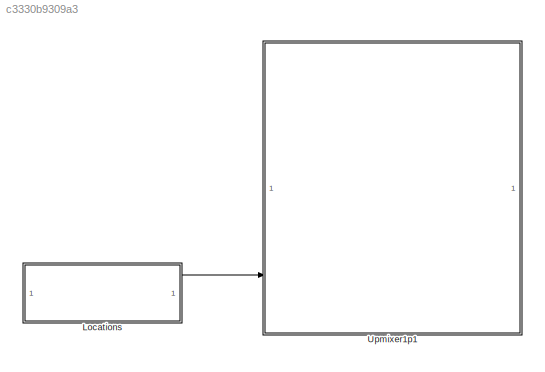
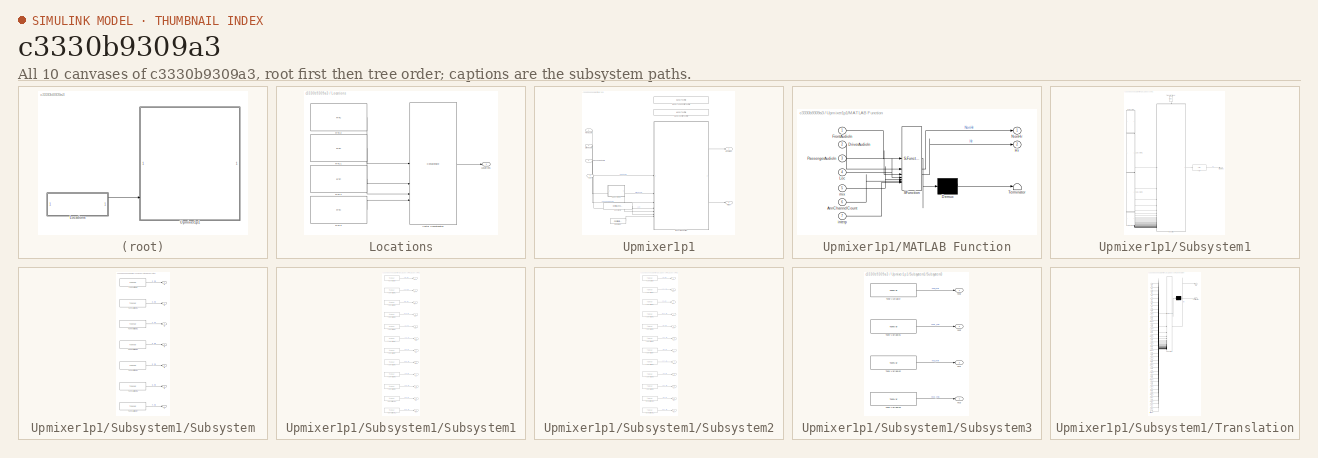
[diagram: thumbnail index - all 10 canvases of the model, root first then tree order]
MODEL slx_c3330b9309a3
KIND library
CONFIG AbsTol = auto
CONFIG EnableMultiTasking = off
CONFIG FixedStep = auto
CONFIG MaxStep = auto
CONFIG MinStep = auto
CONFIG RelTol = 1e-3
CONFIG SampleTimeConstraint = Unconstrained
CONFIG SolverName = VariableStepAuto
CONFIG StartTime = 0.0
CONFIG StopTime = 10.0
BLOCK [SubSystem] Locations
BLOCK [Outport] Locations/Locations
BLOCK [Reference] Locations/RTC1  REF=RTC/RTC
  SourceBlock = RTC/RTC
  SourceProductName = Bose Talaria
  SourceType = Talaria RTC Receive
BLOCK [Reference] Locations/RTC2  REF=RTC/RTC
  SourceBlock = RTC/RTC
  SourceProductName = Bose Talaria
  SourceType = Talaria RTC Receive
BLOCK [Reference] Locations/RTC3  REF=RTC/RTC
  SourceBlock = RTC/RTC
  SourceProductName = Bose Talaria
  SourceType = Talaria RTC Receive
BLOCK [Reference] Locations/RTC4  REF=RTC/RTC
  SourceBlock = RTC/RTC
  SourceProductName = Bose Talaria
  SourceType = Talaria RTC Receive
BLOCK [Concatenate] Locations/Vector Concatenate2
  ConcatenateDimension = 3
  Mode = Multidimensional array
  NumInputs = 4
BLOCK [SubSystem] Upmixer1p1
BLOCK [Constant] Upmixer1p1/Constant
  Value = Config.Interp
BLOCK [Constant] Upmixer1p1/Constant1
  Value = Config.AnnChannelCount
BLOCK [Inport] Upmixer1p1/DriverAudio
  Port = 2
BLOCK [Inport] Upmixer1p1/FrontAudio
BLOCK [Reference] Upmixer1p1/HandyConfigTextFile  REF=HandyTextFile/HandyTextFile
  SourceBlock = HandyTextFile/HandyTextFile
  SourceProductName = Bose Talaria
  SourceType = Talaria Handy Text File
BLOCK [Reference] Upmixer1p1/HandyTuneConfigTextFile  REF=HandyTextFile/HandyTextFile
  SourceBlock = HandyTextFile/HandyTextFile
  SourceProductName = Bose Talaria
  SourceType = Talaria Handy Text File
BLOCK [Outport] Upmixer1p1/HrOut
  Port = 2
  VectorParamsAs1DForOutWhenUnconnected = off
BLOCK [Inport] Upmixer1p1/Loc
  Port = 4
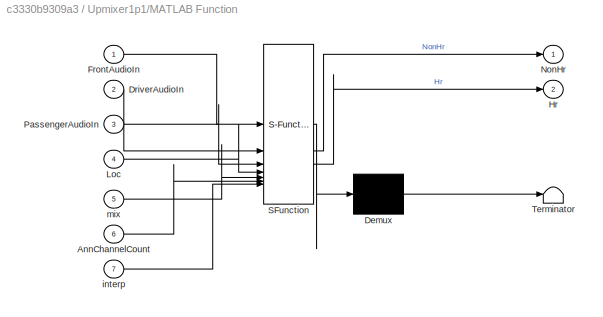
BLOCK [SubSystem] Upmixer1p1/MATLAB Function
  ErrorFcn = Stateflow.Translate.translate
  PermitHierarchicalResolution = ExplicitOnly
  SFBlockType = MATLAB Function
  TreatAsAtomicUnit = on
BLOCK [Demux] Upmixer1p1/MATLAB Function/ Demux 
  Outputs = 1
BLOCK [S-Function] Upmixer1p1/MATLAB Function/ SFunction 
  EnableBusSupport = off
  FunctionName = sf_sfun
  Parameters = ChannelsPerHeadrest,FrontPeripheralChannelCount,HeadrestCount
  PortCounts = [7 3]
  SFcnIsStateOwnerBlock = off
  SFunctionDeploymentMode = off
  Tag = Stateflow S-Function 2
BLOCK [Terminator] Upmixer1p1/MATLAB Function/ Terminator 
BLOCK [Inport] Upmixer1p1/MATLAB Function/AnnChannelCount
  Port = 6
BLOCK [Inport] Upmixer1p1/MATLAB Function/DriverAudioIn
  Port = 2
BLOCK [Inport] Upmixer1p1/MATLAB Function/FrontAudioIn
BLOCK [Outport] Upmixer1p1/MATLAB Function/Hr
  Port = 2
BLOCK [Inport] Upmixer1p1/MATLAB Function/Loc
  Port = 4
BLOCK [Outport] Upmixer1p1/MATLAB Function/NonHr
BLOCK [Inport] Upmixer1p1/MATLAB Function/PassengerAudioIn
  Port = 3
BLOCK [Inport] Upmixer1p1/MATLAB Function/interp
  Port = 7
BLOCK [Inport] Upmixer1p1/MATLAB Function/mix
  Port = 5
BLOCK [Outport] Upmixer1p1/NonHrOut
  VectorParamsAs1DForOutWhenUnconnected = off
BLOCK [Inport] Upmixer1p1/PassengerAudio
  Port = 3
BLOCK [SubSystem] Upmixer1p1/Subsystem1
BLOCK [Outport] Upmixer1p1/Subsystem1/MixGains
BLOCK [SubSystem] Upmixer1p1/Subsystem1/Subsystem
BLOCK [Reference] Upmixer1p1/Subsystem1/Subsystem/Tune Variable  REF=TuneVar/TuneVar
  SourceBlock = TuneVar/TuneVar
  SourceProductName = Bose Talaria
  SourceType = Talaria Tune Variable
BLOCK [Reference] Upmixer1p1/Subsystem1/Subsystem/Tune Variable1  REF=TuneVar/TuneVar
  SourceBlock = TuneVar/TuneVar
  SourceProductName = Bose Talaria
  SourceType = Talaria Tune Variable
BLOCK [Reference] Upmixer1p1/Subsystem1/Subsystem/Tune Variable2  REF=TuneVar/TuneVar
  SourceBlock = TuneVar/TuneVar
  SourceProductName = Bose Talaria
  SourceType = Talaria Tune Variable
BLOCK [Reference] Upmixer1p1/Subsystem1/Subsystem/Tune Variable3  REF=TuneVar/TuneVar
  SourceBlock = TuneVar/TuneVar
  SourceProductName = Bose Talaria
  SourceType = Talaria Tune Variable
BLOCK [Reference] Upmixer1p1/Subsystem1/Subsystem/Tune Variable4  REF=TuneVar/TuneVar
  SourceBlock = TuneVar/TuneVar
  SourceProductName = Bose Talaria
  SourceType = Talaria Tune Variable
BLOCK [Reference] Upmixer1p1/Subsystem1/Subsystem/Tune Variable5  REF=TuneVar/TuneVar
  SourceBlock = TuneVar/TuneVar
  SourceProductName = Bose Talaria
  SourceType = Talaria Tune Variable
BLOCK [Reference] Upmixer1p1/Subsystem1/Subsystem/Tune Variable7  REF=TuneVar/TuneVar
  SourceBlock = TuneVar/TuneVar
  SourceProductName = Bose Talaria
  SourceType = Talaria Tune Variable
BLOCK [Outport] Upmixer1p1/Subsystem1/Subsystem/f1
BLOCK [Outport] Upmixer1p1/Subsystem1/Subsystem/f2
  Port = 2
BLOCK [Outport] Upmixer1p1/Subsystem1/Subsystem/f3
  Port = 3
BLOCK [Outport] Upmixer1p1/Subsystem1/Subsystem/f4
  Port = 4
BLOCK [Outport] Upmixer1p1/Subsystem1/Subsystem/f5
  Port = 5
BLOCK [Outport] Upmixer1p1/Subsystem1/Subsystem/f6
  Port = 6
BLOCK [Outport] Upmixer1p1/Subsystem1/Subsystem/f7
  Port = 7
BLOCK [SubSystem] Upmixer1p1/Subsystem1/Subsystem1
BLOCK [Outport] Upmixer1p1/Subsystem1/Subsystem1/LCI
  Port = 9
BLOCK [Outport] Upmixer1p1/Subsystem1/Subsystem1/LCT
  Port = 10
BLOCK [Outport] Upmixer1p1/Subsystem1/Subsystem1/LFI
BLOCK [Outport] Upmixer1p1/Subsystem1/Subsystem1/LFT
  Port = 2
BLOCK [Outport] Upmixer1p1/Subsystem1/Subsystem1/LSI
  Port = 5
BLOCK [Outport] Upmixer1p1/Subsystem1/Subsystem1/LST
  Port = 6
BLOCK [Outport] Upmixer1p1/Subsystem1/Subsystem1/RCI
  Port = 11
BLOCK [Outport] Upmixer1p1/Subsystem1/Subsystem1/RCT
  Port = 12
BLOCK [Outport] Upmixer1p1/Subsystem1/Subsystem1/RFI
  Port = 3
BLOCK [Outport] Upmixer1p1/Subsystem1/Subsystem1/RFT
  Port = 4
BLOCK [Outport] Upmixer1p1/Subsystem1/Subsystem1/RSI
  Port = 7
BLOCK [Outport] Upmixer1p1/Subsystem1/Subsystem1/RST
  Port = 8
BLOCK [Reference] Upmixer1p1/Subsystem1/Subsystem1/Tune Variable  REF=TuneVar/TuneVar
  SourceBlock = TuneVar/TuneVar
  SourceProductName = Bose Talaria
  SourceType = Talaria Tune Variable
BLOCK [Reference] Upmixer1p1/Subsystem1/Subsystem1/Tune Variable1  REF=TuneVar/TuneVar
  SourceBlock = TuneVar/TuneVar
  SourceProductName = Bose Talaria
  SourceType = Talaria Tune Variable
BLOCK [Reference] Upmixer1p1/Subsystem1/Subsystem1/Tune Variable10  REF=TuneVar/TuneVar
  SourceBlock = TuneVar/TuneVar
  SourceProductName = Bose Talaria
  SourceType = Talaria Tune Variable
BLOCK [Reference] Upmixer1p1/Subsystem1/Subsystem1/Tune Variable11  REF=TuneVar/TuneVar
  SourceBlock = TuneVar/TuneVar
  SourceProductName = Bose Talaria
  SourceType = Talaria Tune Variable
BLOCK [Reference] Upmixer1p1/Subsystem1/Subsystem1/Tune Variable2  REF=TuneVar/TuneVar
  SourceBlock = TuneVar/TuneVar
  SourceProductName = Bose Talaria
  SourceType = Talaria Tune Variable
BLOCK [Reference] Upmixer1p1/Subsystem1/Subsystem1/Tune Variable3  REF=TuneVar/TuneVar
  SourceBlock = TuneVar/TuneVar
  SourceProductName = Bose Talaria
  SourceType = Talaria Tune Variable
BLOCK [Reference] Upmixer1p1/Subsystem1/Subsystem1/Tune Variable4  REF=TuneVar/TuneVar
  SourceBlock = TuneVar/TuneVar
  SourceProductName = Bose Talaria
  SourceType = Talaria Tune Variable
BLOCK [Reference] Upmixer1p1/Subsystem1/Subsystem1/Tune Variable5  REF=TuneVar/TuneVar
  SourceBlock = TuneVar/TuneVar
  SourceProductName = Bose Talaria
  SourceType = Talaria Tune Variable
BLOCK [Reference] Upmixer1p1/Subsystem1/Subsystem1/Tune Variable6  REF=TuneVar/TuneVar
  SourceBlock = TuneVar/TuneVar
  SourceProductName = Bose Talaria
  SourceType = Talaria Tune Variable
BLOCK [Reference] Upmixer1p1/Subsystem1/Subsystem1/Tune Variable7  REF=TuneVar/TuneVar
  SourceBlock = TuneVar/TuneVar
  SourceProductName = Bose Talaria
  SourceType = Talaria Tune Variable
BLOCK [Reference] Upmixer1p1/Subsystem1/Subsystem1/Tune Variable8  REF=TuneVar/TuneVar
  SourceBlock = TuneVar/TuneVar
  SourceProductName = Bose Talaria
  SourceType = Talaria Tune Variable
BLOCK [Reference] Upmixer1p1/Subsystem1/Subsystem1/Tune Variable9  REF=TuneVar/TuneVar
  SourceBlock = TuneVar/TuneVar
  SourceProductName = Bose Talaria
  SourceType = Talaria Tune Variable
BLOCK [SubSystem] Upmixer1p1/Subsystem1/Subsystem2
BLOCK [Outport] Upmixer1p1/Subsystem1/Subsystem2/LCI
  Port = 9
BLOCK [Outport] Upmixer1p1/Subsystem1/Subsystem2/LCT
  Port = 10
BLOCK [Outport] Upmixer1p1/Subsystem1/Subsystem2/LFI
BLOCK [Outport] Upmixer1p1/Subsystem1/Subsystem2/LFT
  Port = 2
BLOCK [Outport] Upmixer1p1/Subsystem1/Subsystem2/LSI
  Port = 5
BLOCK [Outport] Upmixer1p1/Subsystem1/Subsystem2/LST
  Port = 6
BLOCK [Outport] Upmixer1p1/Subsystem1/Subsystem2/RCI
  Port = 11
BLOCK [Outport] Upmixer1p1/Subsystem1/Subsystem2/RCT
  Port = 12
BLOCK [Outport] Upmixer1p1/Subsystem1/Subsystem2/RFI
  Port = 3
BLOCK [Outport] Upmixer1p1/Subsystem1/Subsystem2/RFT
  Port = 4
BLOCK [Outport] Upmixer1p1/Subsystem1/Subsystem2/RSI
  Port = 7
BLOCK [Outport] Upmixer1p1/Subsystem1/Subsystem2/RST
  Port = 8
BLOCK [Reference] Upmixer1p1/Subsystem1/Subsystem2/Tune Variable  REF=TuneVar/TuneVar
  SourceBlock = TuneVar/TuneVar
  SourceProductName = Bose Talaria
  SourceType = Talaria Tune Variable
BLOCK [Reference] Upmixer1p1/Subsystem1/Subsystem2/Tune Variable1  REF=TuneVar/TuneVar
  SourceBlock = TuneVar/TuneVar
  SourceProductName = Bose Talaria
  SourceType = Talaria Tune Variable
BLOCK [Reference] Upmixer1p1/Subsystem1/Subsystem2/Tune Variable10  REF=TuneVar/TuneVar
  SourceBlock = TuneVar/TuneVar
  SourceProductName = Bose Talaria
  SourceType = Talaria Tune Variable
BLOCK [Reference] Upmixer1p1/Subsystem1/Subsystem2/Tune Variable11  REF=TuneVar/TuneVar
  SourceBlock = TuneVar/TuneVar
  SourceProductName = Bose Talaria
  SourceType = Talaria Tune Variable
BLOCK [Reference] Upmixer1p1/Subsystem1/Subsystem2/Tune Variable2  REF=TuneVar/TuneVar
  SourceBlock = TuneVar/TuneVar
  SourceProductName = Bose Talaria
  SourceType = Talaria Tune Variable
BLOCK [Reference] Upmixer1p1/Subsystem1/Subsystem2/Tune Variable3  REF=TuneVar/TuneVar
  SourceBlock = TuneVar/TuneVar
  SourceProductName = Bose Talaria
  SourceType = Talaria Tune Variable
BLOCK [Reference] Upmixer1p1/Subsystem1/Subsystem2/Tune Variable4  REF=TuneVar/TuneVar
  SourceBlock = TuneVar/TuneVar
  SourceProductName = Bose Talaria
  SourceType = Talaria Tune Variable
BLOCK [Reference] Upmixer1p1/Subsystem1/Subsystem2/Tune Variable5  REF=TuneVar/TuneVar
  SourceBlock = TuneVar/TuneVar
  SourceProductName = Bose Talaria
  SourceType = Talaria Tune Variable
BLOCK [Reference] Upmixer1p1/Subsystem1/Subsystem2/Tune Variable6  REF=TuneVar/TuneVar
  SourceBlock = TuneVar/TuneVar
  SourceProductName = Bose Talaria
  SourceType = Talaria Tune Variable
BLOCK [Reference] Upmixer1p1/Subsystem1/Subsystem2/Tune Variable7  REF=TuneVar/TuneVar
  SourceBlock = TuneVar/TuneVar
  SourceProductName = Bose Talaria
  SourceType = Talaria Tune Variable
BLOCK [Reference] Upmixer1p1/Subsystem1/Subsystem2/Tune Variable8  REF=TuneVar/TuneVar
  SourceBlock = TuneVar/TuneVar
  SourceProductName = Bose Talaria
  SourceType = Talaria Tune Variable
BLOCK [Reference] Upmixer1p1/Subsystem1/Subsystem2/Tune Variable9  REF=TuneVar/TuneVar
  SourceBlock = TuneVar/TuneVar
  SourceProductName = Bose Talaria
  SourceType = Talaria Tune Variable
BLOCK [SubSystem] Upmixer1p1/Subsystem1/Subsystem3
BLOCK [Reference] Upmixer1p1/Subsystem1/Subsystem3/Tune Variable  REF=TuneVar/TuneVar
  SourceBlock = TuneVar/TuneVar
  SourceProductName = Bose Talaria
  SourceType = Talaria Tune Variable
BLOCK [Reference] Upmixer1p1/Subsystem1/Subsystem3/Tune Variable1  REF=TuneVar/TuneVar
  SourceBlock = TuneVar/TuneVar
  SourceProductName = Bose Talaria
  SourceType = Talaria Tune Variable
BLOCK [Reference] Upmixer1p1/Subsystem1/Subsystem3/Tune Variable2  REF=TuneVar/TuneVar
  SourceBlock = TuneVar/TuneVar
  SourceProductName = Bose Talaria
  SourceType = Talaria Tune Variable
BLOCK [Reference] Upmixer1p1/Subsystem1/Subsystem3/Tune Variable3  REF=TuneVar/TuneVar
  SourceBlock = TuneVar/TuneVar
  SourceProductName = Bose Talaria
  SourceType = Talaria Tune Variable
BLOCK [Outport] Upmixer1p1/Subsystem1/Subsystem3/nv0l
BLOCK [Outport] Upmixer1p1/Subsystem1/Subsystem3/nv0r
  Port = 2
BLOCK [Outport] Upmixer1p1/Subsystem1/Subsystem3/nv1l
  Port = 3
BLOCK [Outport] Upmixer1p1/Subsystem1/Subsystem3/nv1r
  Port = 4
BLOCK [Reference] Upmixer1p1/Subsystem1/TOP  REF=TOP/TOP
  SourceBlock = TOP/TOP
  SourceProductName = Bose Talaria
  SourceType = Talaria Target Overlay Parameter
BLOCK [Reference] Upmixer1p1/Subsystem1/TranslateTrigger  REF=TuneVar/TranslateTrigger
  NameLocation = left
  SourceBlock = TuneVar/TranslateTrigger
  SourceProductName = Bose Talaria
  SourceType = Talaria Translate Trigger
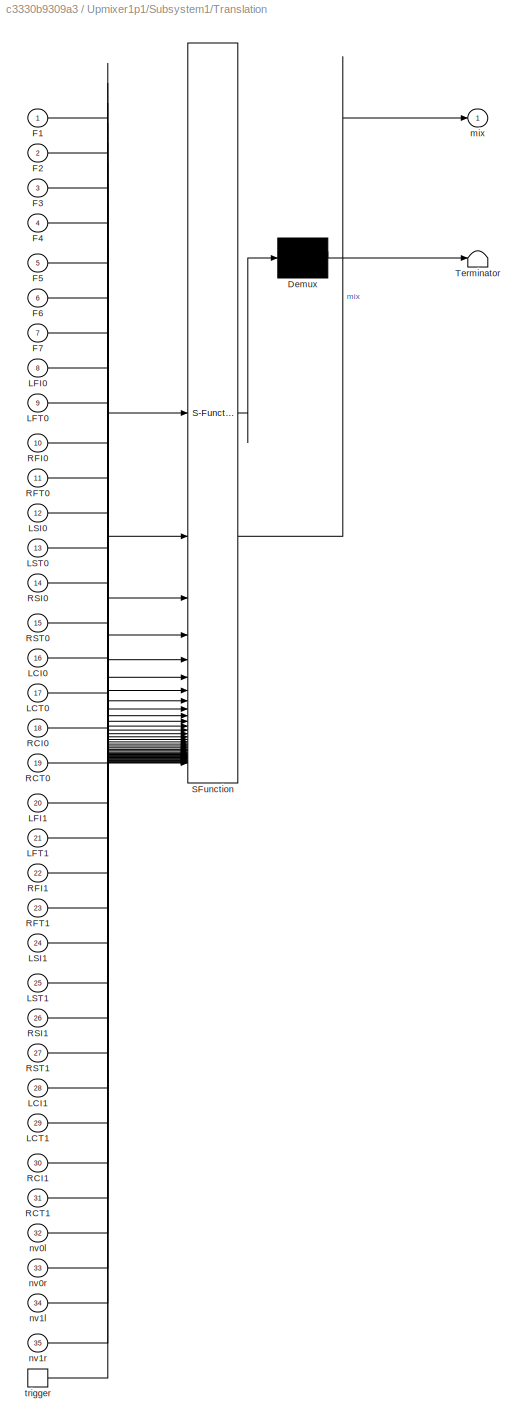
BLOCK [SubSystem] Upmixer1p1/Subsystem1/Translation
  ErrorFcn = Stateflow.Translate.translate
  PermitHierarchicalResolution = ExplicitOnly
  SFBlockType = MATLAB Function
  TreatAsAtomicUnit = on
BLOCK [Demux] Upmixer1p1/Subsystem1/Translation/ Demux 
  Outputs = 1
BLOCK [S-Function] Upmixer1p1/Subsystem1/Translation/ SFunction 
  EnableBusSupport = off
  FunctionName = sf_sfun
  Parameters = ChannelsPerHeadrest,FrontPeripheralChannelCount,HeadrestCount
  PortCounts = [36 2]
  SFcnIsStateOwnerBlock = off
  SFunctionDeploymentMode = off
  Tag = Stateflow S-Function 1
BLOCK [Terminator] Upmixer1p1/Subsystem1/Translation/ Terminator 
BLOCK [Inport] Upmixer1p1/Subsystem1/Translation/F1
BLOCK [Inport] Upmixer1p1/Subsystem1/Translation/F2
  Port = 2
BLOCK [Inport] Upmixer1p1/Subsystem1/Translation/F3
  Port = 3
BLOCK [Inport] Upmixer1p1/Subsystem1/Translation/F4
  Port = 4
BLOCK [Inport] Upmixer1p1/Subsystem1/Translation/F5
  Port = 5
BLOCK [Inport] Upmixer1p1/Subsystem1/Translation/F6
  Port = 6
BLOCK [Inport] Upmixer1p1/Subsystem1/Translation/F7
  Port = 7
BLOCK [Inport] Upmixer1p1/Subsystem1/Translation/LCI0
  Port = 16
BLOCK [Inport] Upmixer1p1/Subsystem1/Translation/LCI1
  Port = 28
BLOCK [Inport] Upmixer1p1/Subsystem1/Translation/LCT0
  Port = 17
BLOCK [Inport] Upmixer1p1/Subsystem1/Translation/LCT1
  Port = 29
BLOCK [Inport] Upmixer1p1/Subsystem1/Translation/LFI0
  Port = 8
BLOCK [Inport] Upmixer1p1/Subsystem1/Translation/LFI1
  Port = 20
BLOCK [Inport] Upmixer1p1/Subsystem1/Translation/LFT0
  Port = 9
BLOCK [Inport] Upmixer1p1/Subsystem1/Translation/LFT1
  Port = 21
BLOCK [Inport] Upmixer1p1/Subsystem1/Translation/LSI0
  Port = 12
BLOCK [Inport] Upmixer1p1/Subsystem1/Translation/LSI1
  Port = 24
BLOCK [Inport] Upmixer1p1/Subsystem1/Translation/LST0
  Port = 13
BLOCK [Inport] Upmixer1p1/Subsystem1/Translation/LST1
  Port = 25
BLOCK [Inport] Upmixer1p1/Subsystem1/Translation/RCI0
  Port = 18
BLOCK [Inport] Upmixer1p1/Subsystem1/Translation/RCI1
  Port = 30
BLOCK [Inport] Upmixer1p1/Subsystem1/Translation/RCT0
  Port = 19
BLOCK [Inport] Upmixer1p1/Subsystem1/Translation/RCT1
  Port = 31
BLOCK [Inport] Upmixer1p1/Subsystem1/Translation/RFI0
  Port = 10
BLOCK [Inport] Upmixer1p1/Subsystem1/Translation/RFI1
  Port = 22
BLOCK [Inport] Upmixer1p1/Subsystem1/Translation/RFT0
  Port = 11
BLOCK [Inport] Upmixer1p1/Subsystem1/Translation/RFT1
  Port = 23
BLOCK [Inport] Upmixer1p1/Subsystem1/Translation/RSI0
  Port = 14
BLOCK [Inport] Upmixer1p1/Subsystem1/Translation/RSI1
  Port = 26
BLOCK [Inport] Upmixer1p1/Subsystem1/Translation/RST0
  Port = 15
BLOCK [Inport] Upmixer1p1/Subsystem1/Translation/RST1
  Port = 27
BLOCK [Outport] Upmixer1p1/Subsystem1/Translation/mix
  VectorParamsAs1DForOutWhenUnconnected = off
BLOCK [Inport] Upmixer1p1/Subsystem1/Translation/nv0l
  Port = 32
BLOCK [Inport] Upmixer1p1/Subsystem1/Translation/nv0r
  Port = 33
BLOCK [Inport] Upmixer1p1/Subsystem1/Translation/nv1l
  Port = 34
BLOCK [Inport] Upmixer1p1/Subsystem1/Translation/nv1r
  Port = 35
BLOCK [TriggerPort] Upmixer1p1/Subsystem1/Translation/trigger
  ShowOutputPort = on
  StatesWhenEnabling = held
  TriggerType = function-call
  VariantControl = Variant
LINE Locations/RTC1:1 -> Locations/Vector Concatenate2:2
LINE Locations/RTC2:1 -> Locations/Vector Concatenate2:1
LINE Locations/RTC3:1 -> Locations/Vector Concatenate2:4
LINE Locations/RTC4:1 -> Locations/Vector Concatenate2:3
LINE Locations/Vector Concatenate2:1 -> Locations/Locations:1
LINE Locations:1 -> Upmixer1p1:4
LINE Upmixer1p1/Constant1:1 -> Upmixer1p1/MATLAB Function:6
LINE Upmixer1p1/Constant:1 -> Upmixer1p1/MATLAB Function:7
LINE Upmixer1p1/DriverAudio:1 -> Upmixer1p1/MATLAB Function:2
LINE Upmixer1p1/FrontAudio:1 -> Upmixer1p1/MATLAB Function:1
LINE Upmixer1p1/Loc:1 -> Upmixer1p1/MATLAB Function:4
LINE Upmixer1p1/MATLAB Function:1 -> Upmixer1p1/NonHrOut:1
LINE Upmixer1p1/MATLAB Function:2 -> Upmixer1p1/HrOut:1
LINE Upmixer1p1/PassengerAudio:1 -> Upmixer1p1/MATLAB Function:3
LINE Upmixer1p1/Subsystem1/Subsystem/Tune Variable1:1 -> Upmixer1p1/Subsystem1/Subsystem/f2:1
LINE Upmixer1p1/Subsystem1/Subsystem/Tune Variable2:1 -> Upmixer1p1/Subsystem1/Subsystem/f3:1
LINE Upmixer1p1/Subsystem1/Subsystem/Tune Variable3:1 -> Upmixer1p1/Subsystem1/Subsystem/f4:1
LINE Upmixer1p1/Subsystem1/Subsystem/Tune Variable4:1 -> Upmixer1p1/Subsystem1/Subsystem/f5:1
LINE Upmixer1p1/Subsystem1/Subsystem/Tune Variable5:1 -> Upmixer1p1/Subsystem1/Subsystem/f6:1
LINE Upmixer1p1/Subsystem1/Subsystem/Tune Variable7:1 -> Upmixer1p1/Subsystem1/Subsystem/f7:1
LINE Upmixer1p1/Subsystem1/Subsystem/Tune Variable:1 -> Upmixer1p1/Subsystem1/Subsystem/f1:1
LINE Upmixer1p1/Subsystem1/Subsystem1/Tune Variable10:1 -> Upmixer1p1/Subsystem1/Subsystem1/RCI:1
LINE Upmixer1p1/Subsystem1/Subsystem1/Tune Variable11:1 -> Upmixer1p1/Subsystem1/Subsystem1/RCT:1
LINE Upmixer1p1/Subsystem1/Subsystem1/Tune Variable1:1 -> Upmixer1p1/Subsystem1/Subsystem1/LFT:1
LINE Upmixer1p1/Subsystem1/Subsystem1/Tune Variable2:1 -> Upmixer1p1/Subsystem1/Subsystem1/RFI:1
LINE Upmixer1p1/Subsystem1/Subsystem1/Tune Variable3:1 -> Upmixer1p1/Subsystem1/Subsystem1/RFT:1
LINE Upmixer1p1/Subsystem1/Subsystem1/Tune Variable4:1 -> Upmixer1p1/Subsystem1/Subsystem1/LSI:1
LINE Upmixer1p1/Subsystem1/Subsystem1/Tune Variable5:1 -> Upmixer1p1/Subsystem1/Subsystem1/LST:1
LINE Upmixer1p1/Subsystem1/Subsystem1/Tune Variable6:1 -> Upmixer1p1/Subsystem1/Subsystem1/RST:1
LINE Upmixer1p1/Subsystem1/Subsystem1/Tune Variable7:1 -> Upmixer1p1/Subsystem1/Subsystem1/RSI:1
LINE Upmixer1p1/Subsystem1/Subsystem1/Tune Variable8:1 -> Upmixer1p1/Subsystem1/Subsystem1/LCI:1
LINE Upmixer1p1/Subsystem1/Subsystem1/Tune Variable9:1 -> Upmixer1p1/Subsystem1/Subsystem1/LCT:1
LINE Upmixer1p1/Subsystem1/Subsystem1/Tune Variable:1 -> Upmixer1p1/Subsystem1/Subsystem1/LFI:1
LINE Upmixer1p1/Subsystem1/Subsystem1:1 -> Upmixer1p1/Subsystem1/Translation:8
LINE Upmixer1p1/Subsystem1/Subsystem1:10 -> Upmixer1p1/Subsystem1/Translation:17
LINE Upmixer1p1/Subsystem1/Subsystem1:11 -> Upmixer1p1/Subsystem1/Translation:18
LINE Upmixer1p1/Subsystem1/Subsystem1:12 -> Upmixer1p1/Subsystem1/Translation:19
LINE Upmixer1p1/Subsystem1/Subsystem1:2 -> Upmixer1p1/Subsystem1/Translation:9
LINE Upmixer1p1/Subsystem1/Subsystem1:3 -> Upmixer1p1/Subsystem1/Translation:10
LINE Upmixer1p1/Subsystem1/Subsystem1:4 -> Upmixer1p1/Subsystem1/Translation:11
LINE Upmixer1p1/Subsystem1/Subsystem1:5 -> Upmixer1p1/Subsystem1/Translation:12
LINE Upmixer1p1/Subsystem1/Subsystem1:6 -> Upmixer1p1/Subsystem1/Translation:13
LINE Upmixer1p1/Subsystem1/Subsystem1:7 -> Upmixer1p1/Subsystem1/Translation:14
LINE Upmixer1p1/Subsystem1/Subsystem1:8 -> Upmixer1p1/Subsystem1/Translation:15
LINE Upmixer1p1/Subsystem1/Subsystem1:9 -> Upmixer1p1/Subsystem1/Translation:16
LINE Upmixer1p1/Subsystem1/Subsystem2/Tune Variable10:1 -> Upmixer1p1/Subsystem1/Subsystem2/RCI:1
LINE Upmixer1p1/Subsystem1/Subsystem2/Tune Variable11:1 -> Upmixer1p1/Subsystem1/Subsystem2/RCT:1
LINE Upmixer1p1/Subsystem1/Subsystem2/Tune Variable1:1 -> Upmixer1p1/Subsystem1/Subsystem2/LFT:1
LINE Upmixer1p1/Subsystem1/Subsystem2/Tune Variable2:1 -> Upmixer1p1/Subsystem1/Subsystem2/RFI:1
LINE Upmixer1p1/Subsystem1/Subsystem2/Tune Variable3:1 -> Upmixer1p1/Subsystem1/Subsystem2/RFT:1
LINE Upmixer1p1/Subsystem1/Subsystem2/Tune Variable4:1 -> Upmixer1p1/Subsystem1/Subsystem2/LSI:1
LINE Upmixer1p1/Subsystem1/Subsystem2/Tune Variable5:1 -> Upmixer1p1/Subsystem1/Subsystem2/LST:1
LINE Upmixer1p1/Subsystem1/Subsystem2/Tune Variable6:1 -> Upmixer1p1/Subsystem1/Subsystem2/RST:1
LINE Upmixer1p1/Subsystem1/Subsystem2/Tune Variable7:1 -> Upmixer1p1/Subsystem1/Subsystem2/RSI:1
LINE Upmixer1p1/Subsystem1/Subsystem2/Tune Variable8:1 -> Upmixer1p1/Subsystem1/Subsystem2/LCI:1
LINE Upmixer1p1/Subsystem1/Subsystem2/Tune Variable9:1 -> Upmixer1p1/Subsystem1/Subsystem2/LCT:1
LINE Upmixer1p1/Subsystem1/Subsystem2/Tune Variable:1 -> Upmixer1p1/Subsystem1/Subsystem2/LFI:1
LINE Upmixer1p1/Subsystem1/Subsystem2:1 -> Upmixer1p1/Subsystem1/Translation:20
LINE Upmixer1p1/Subsystem1/Subsystem2:10 -> Upmixer1p1/Subsystem1/Translation:29
LINE Upmixer1p1/Subsystem1/Subsystem2:11 -> Upmixer1p1/Subsystem1/Translation:30
LINE Upmixer1p1/Subsystem1/Subsystem2:12 -> Upmixer1p1/Subsystem1/Translation:31
LINE Upmixer1p1/Subsystem1/Subsystem2:2 -> Upmixer1p1/Subsystem1/Translation:21
LINE Upmixer1p1/Subsystem1/Subsystem2:3 -> Upmixer1p1/Subsystem1/Translation:22
LINE Upmixer1p1/Subsystem1/Subsystem2:4 -> Upmixer1p1/Subsystem1/Translation:23
LINE Upmixer1p1/Subsystem1/Subsystem2:5 -> Upmixer1p1/Subsystem1/Translation:24
LINE Upmixer1p1/Subsystem1/Subsystem2:6 -> Upmixer1p1/Subsystem1/Translation:25
LINE Upmixer1p1/Subsystem1/Subsystem2:7 -> Upmixer1p1/Subsystem1/Translation:26
LINE Upmixer1p1/Subsystem1/Subsystem2:8 -> Upmixer1p1/Subsystem1/Translation:27
LINE Upmixer1p1/Subsystem1/Subsystem2:9 -> Upmixer1p1/Subsystem1/Translation:28
LINE Upmixer1p1/Subsystem1/Subsystem3/Tune Variable1:1 -> Upmixer1p1/Subsystem1/Subsystem3/nv0r:1
LINE Upmixer1p1/Subsystem1/Subsystem3/Tune Variable2:1 -> Upmixer1p1/Subsystem1/Subsystem3/nv1l:1
LINE Upmixer1p1/Subsystem1/Subsystem3/Tune Variable3:1 -> Upmixer1p1/Subsystem1/Subsystem3/nv1r:1
LINE Upmixer1p1/Subsystem1/Subsystem3/Tune Variable:1 -> Upmixer1p1/Subsystem1/Subsystem3/nv0l:1
LINE Upmixer1p1/Subsystem1/Subsystem3:1 -> Upmixer1p1/Subsystem1/Translation:32
LINE Upmixer1p1/Subsystem1/Subsystem3:2 -> Upmixer1p1/Subsystem1/Translation:33
LINE Upmixer1p1/Subsystem1/Subsystem3:3 -> Upmixer1p1/Subsystem1/Translation:34
LINE Upmixer1p1/Subsystem1/Subsystem3:4 -> Upmixer1p1/Subsystem1/Translation:35
LINE Upmixer1p1/Subsystem1/Subsystem:1 -> Upmixer1p1/Subsystem1/Translation:1
LINE Upmixer1p1/Subsystem1/Subsystem:2 -> Upmixer1p1/Subsystem1/Translation:2
LINE Upmixer1p1/Subsystem1/Subsystem:3 -> Upmixer1p1/Subsystem1/Translation:3
LINE Upmixer1p1/Subsystem1/Subsystem:4 -> Upmixer1p1/Subsystem1/Translation:4
LINE Upmixer1p1/Subsystem1/Subsystem:5 -> Upmixer1p1/Subsystem1/Translation:5
LINE Upmixer1p1/Subsystem1/Subsystem:6 -> Upmixer1p1/Subsystem1/Translation:6
LINE Upmixer1p1/Subsystem1/Subsystem:7 -> Upmixer1p1/Subsystem1/Translation:7
LINE Upmixer1p1/Subsystem1/TOP:1 -> Upmixer1p1/Subsystem1/MixGains:1
LINE Upmixer1p1/Subsystem1/TranslateTrigger:1 -> Upmixer1p1/Subsystem1/Translation:trigger
LINE Upmixer1p1/Subsystem1/Translation:1 -> Upmixer1p1/Subsystem1/TOP:1
LINE Upmixer1p1/Subsystem1:1 -> Upmixer1p1/MATLAB Function:5
CHART Upmixer1p1/MATLAB Function states=1 transitions=1
  STATE_LABEL 'eML_blk_kernel()'
  STATE_LABEL 'SCRIPT:\nfunction [NonHr, Hr] = fcn( FrontAudioIn, DriverAudioIn, PassengerAudioIn, Loc, mix, AnnChannelCount, interp, HeadrestCount, ... % Inputs % Parameters\nChannelsPerHeadrest, FrontPeripheralChannelCount)\n\n    frameSize   = size(FrontAudioIn, 1);\n    NonHr       = single(zeros(frameSize, FrontPeripheralChannelCount));\n    Hr          = single(zeros(frameSize, ChannelsPerHeadrest*HeadrestCount)...<+3213ch>'
CHART Upmixer1p1/Subsystem1/Translation states=1 transitions=1
  STATE_LABEL 'eML_blk_kernel()'
  STATE_LABEL 'SCRIPT:\nfunction mix  = fcn(    F1,...\n                        F2,...\n                        F3,...\n                        F4,...\n                        F5,...\n                        F6,...\n                        F7,...\n                        LFI0,...\n                        LFT0,...\n                        RFI0,...\n                        RFT0,...\n                        LSI0,...\n          ...<+3608ch>'
CHART  states=0 transitions=0
CHART  states=0 transitions=0
